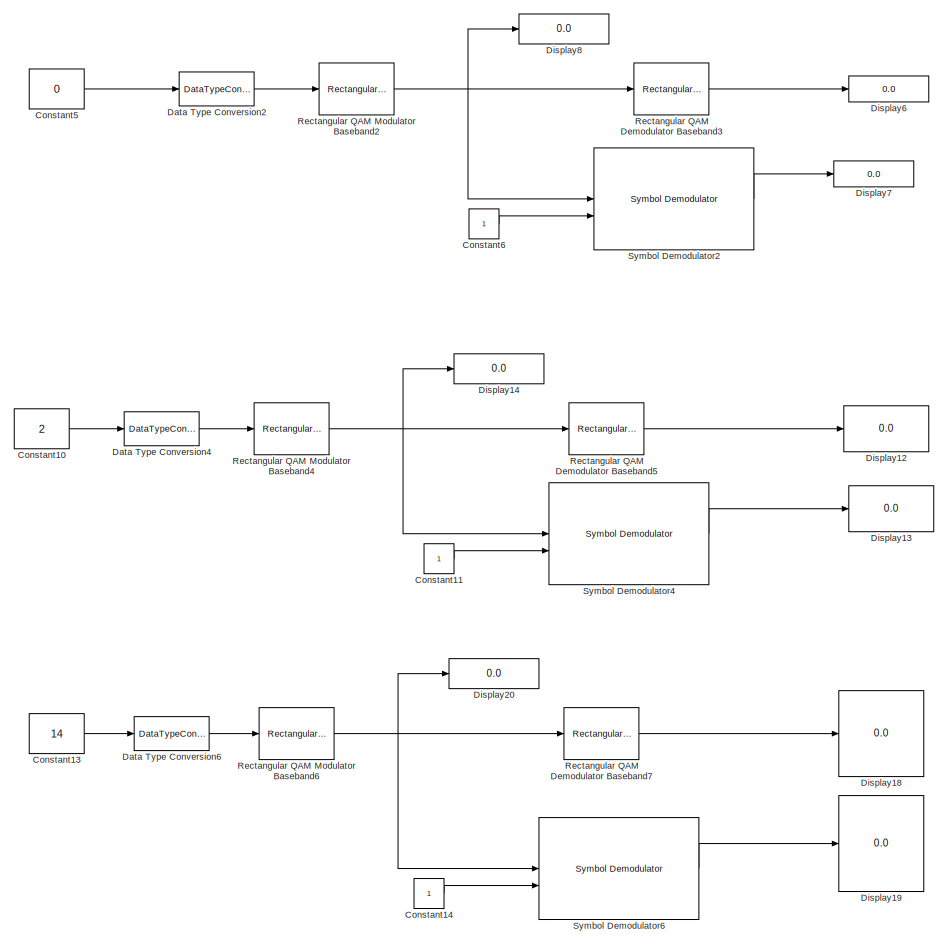
[diagram: root canvas - part 1/2, right side, full height]
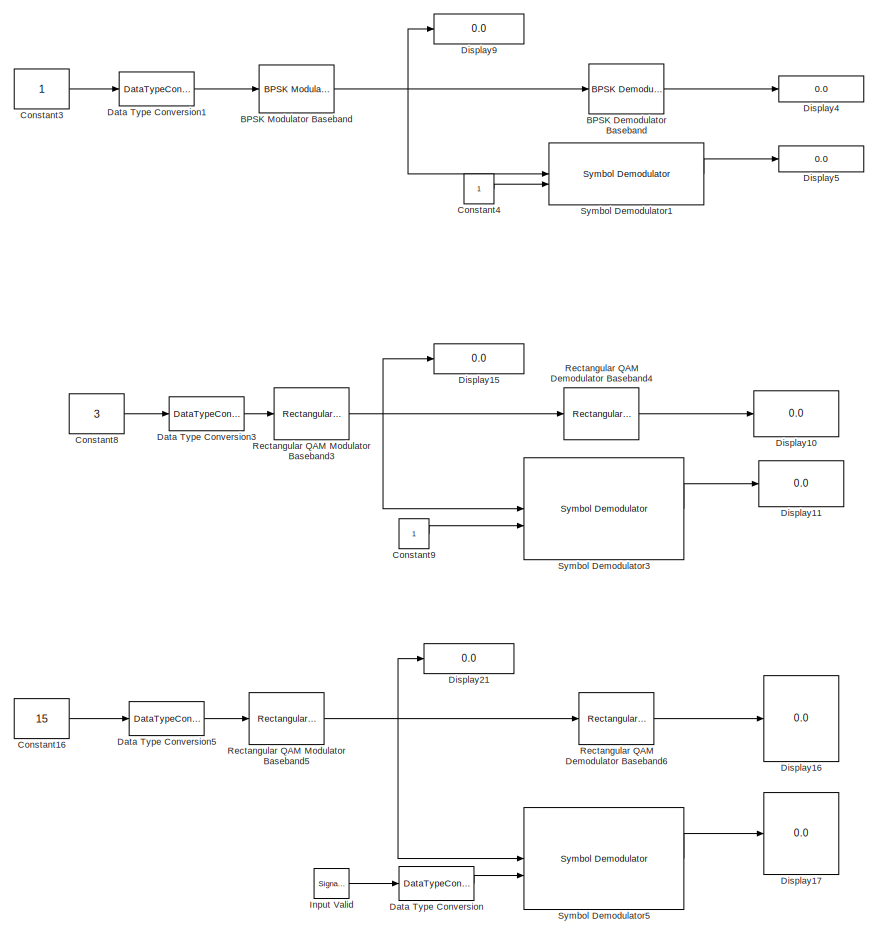
[diagram: root canvas - part 2/2, left side, full height]
MODEL slx_4b32fb0c8fdf
KIND model
CONFIG AbsTol = auto
CONFIG EnableMultiTasking = off
CONFIG FixedStep = auto
CONFIG MaxStep = auto
CONFIG MinStep = auto
CONFIG RelTol = 1e-3
CONFIG SampleTimeConstraint = Unconstrained
CONFIG SolverName = FixedStepDiscrete
CONFIG StartTime = 0.0
CONFIG StopTime = 20
BLOCK [Reference] BPSK Demodulator Baseband  REF=commdigbbndpm3/BPSK
Demodulator
Baseband
  LibrarySourceBlock = commhdldigbbndpm/BPSK\nDemodulator\nBaseband
  SourceBlock = commdigbbndpm3/BPSK\nDemodulator\nBaseband
  SourceType = BPSK Demodulator Baseband
BLOCK [Reference] BPSK Modulator Baseband  REF=commdigbbndpm3/BPSK
Modulator
Baseband
  LibrarySourceBlock = commhdldigbbndpm/BPSK\nModulator\nBaseband
  SourceBlock = commdigbbndpm3/BPSK\nModulator\nBaseband
  SourceType = BPSK Modulator Baseband
BLOCK [Constant] Constant10
  SampleTime = 1
  Value = 2
BLOCK [Constant] Constant11
  OutDataTypeStr = boolean
  SampleTime = -1
BLOCK [Constant] Constant13
  SampleTime = 1
  Value = 14
BLOCK [Constant] Constant14
  OutDataTypeStr = boolean
  SampleTime = -1
BLOCK [Constant] Constant16
  SampleTime = 1
  Value = 15
BLOCK [Constant] Constant3
  SampleTime = 1
BLOCK [Constant] Constant4
  OutDataTypeStr = boolean
  SampleTime = -1
BLOCK [Constant] Constant5
  SampleTime = 1
  Value = 0
BLOCK [Constant] Constant6
  OutDataTypeStr = boolean
  SampleTime = -1
BLOCK [Constant] Constant8
  SampleTime = 1
  Value = 3
BLOCK [Constant] Constant9
  OutDataTypeStr = boolean
  SampleTime = -1
BLOCK [DataTypeConversion] Data Type Conversion
  OutDataTypeStr = boolean
  RndMeth = Floor
  SaturateOnIntegerOverflow = off
BLOCK [DataTypeConversion] Data Type Conversion1
  OutDataTypeStr = uint8
  RndMeth = Floor
  SaturateOnIntegerOverflow = off
BLOCK [DataTypeConversion] Data Type Conversion2
  OutDataTypeStr = uint8
  RndMeth = Floor
  SaturateOnIntegerOverflow = off
BLOCK [DataTypeConversion] Data Type Conversion3
  OutDataTypeStr = uint8
  RndMeth = Floor
  SaturateOnIntegerOverflow = off
BLOCK [DataTypeConversion] Data Type Conversion4
  OutDataTypeStr = uint8
  RndMeth = Floor
  SaturateOnIntegerOverflow = off
BLOCK [DataTypeConversion] Data Type Conversion5
  OutDataTypeStr = uint8
  RndMeth = Floor
  SaturateOnIntegerOverflow = off
BLOCK [DataTypeConversion] Data Type Conversion6
  OutDataTypeStr = uint8
  RndMeth = Floor
  SaturateOnIntegerOverflow = off
BLOCK [Display] Display10
  Decimation = 1
BLOCK [Display] Display11
  Decimation = 1
BLOCK [Display] Display12
  Decimation = 1
BLOCK [Display] Display13
  Decimation = 1
BLOCK [Display] Display14
  Decimation = 1
BLOCK [Display] Display15
  Decimation = 1
BLOCK [Display] Display16
  Decimation = 1
BLOCK [Display] Display17
  Decimation = 1
BLOCK [Display] Display18
  Decimation = 1
BLOCK [Display] Display19
  Decimation = 1
BLOCK [Display] Display20
  Decimation = 1
BLOCK [Display] Display21
  Decimation = 1
BLOCK [Display] Display4
  Decimation = 1
BLOCK [Display] Display5
  Decimation = 1
BLOCK [Display] Display6
  Decimation = 1
BLOCK [Display] Display7
  Decimation = 1
BLOCK [Display] Display8
  Decimation = 1
BLOCK [Display] Display9
  Decimation = 1
BLOCK [Reference] Input Valid  REF=dspsrcs4/Signal From
Workspace
  SourceBlock = dspsrcs4/Signal From\nWorkspace
  SourceType = Signal From Workspace
BLOCK [Reference] Rectangular QAM Demodulator Baseband3  REF=commdigbbndam3/Rectangular QAM
Demodulator
Baseband
  LibrarySourceBlock = commhdldigbbndam/Rectangular QAM\nDemodulator\nBaseband
  SourceBlock = commdigbbndam3/Rectangular QAM\nDemodulator\nBaseband
  SourceType = Rectangular QAM Demodulator Baseband
BLOCK [Reference] Rectangular QAM Demodulator Baseband4  REF=commdigbbndam3/Rectangular QAM
Demodulator
Baseband
  LibrarySourceBlock = commhdldigbbndam/Rectangular QAM\nDemodulator\nBaseband
  SourceBlock = commdigbbndam3/Rectangular QAM\nDemodulator\nBaseband
  SourceType = Rectangular QAM Demodulator Baseband
BLOCK [Reference] Rectangular QAM Demodulator Baseband5  REF=commdigbbndam3/Rectangular QAM
Demodulator
Baseband
  LibrarySourceBlock = commhdldigbbndam/Rectangular QAM\nDemodulator\nBaseband
  SourceBlock = commdigbbndam3/Rectangular QAM\nDemodulator\nBaseband
  SourceType = Rectangular QAM Demodulator Baseband
BLOCK [Reference] Rectangular QAM Demodulator Baseband6  REF=commdigbbndam3/Rectangular QAM
Demodulator
Baseband
  LibrarySourceBlock = commhdldigbbndam/Rectangular QAM\nDemodulator\nBaseband
  SourceBlock = commdigbbndam3/Rectangular QAM\nDemodulator\nBaseband
  SourceType = Rectangular QAM Demodulator Baseband
BLOCK [Reference] Rectangular QAM Demodulator Baseband7  REF=commdigbbndam3/Rectangular QAM
Demodulator
Baseband
  LibrarySourceBlock = commhdldigbbndam/Rectangular QAM\nDemodulator\nBaseband
  SourceBlock = commdigbbndam3/Rectangular QAM\nDemodulator\nBaseband
  SourceType = Rectangular QAM Demodulator Baseband
BLOCK [Reference] Rectangular QAM Modulator Baseband2  REF=commdigbbndam3/Rectangular QAM
Modulator
Baseband
  LibrarySourceBlock = commhdldigbbndam/Rectangular QAM\nModulator\nBaseband
  SourceBlock = commdigbbndam3/Rectangular QAM\nModulator\nBaseband
  SourceType = Rectangular QAM Modulator Baseband
BLOCK [Reference] Rectangular QAM Modulator Baseband3  REF=commdigbbndam3/Rectangular QAM
Modulator
Baseband
  LibrarySourceBlock = commhdldigbbndam/Rectangular QAM\nModulator\nBaseband
  SourceBlock = commdigbbndam3/Rectangular QAM\nModulator\nBaseband
  SourceType = Rectangular QAM Modulator Baseband
BLOCK [Reference] Rectangular QAM Modulator Baseband4  REF=commdigbbndam3/Rectangular QAM
Modulator
Baseband
  LibrarySourceBlock = commhdldigbbndam/Rectangular QAM\nModulator\nBaseband
  SourceBlock = commdigbbndam3/Rectangular QAM\nModulator\nBaseband
  SourceType = Rectangular QAM Modulator Baseband
BLOCK [Reference] Rectangular QAM Modulator Baseband5  REF=commdigbbndam3/Rectangular QAM
Modulator
Baseband
  LibrarySourceBlock = commhdldigbbndam/Rectangular QAM\nModulator\nBaseband
  SourceBlock = commdigbbndam3/Rectangular QAM\nModulator\nBaseband
  SourceType = Rectangular QAM Modulator Baseband
BLOCK [Reference] Rectangular QAM Modulator Baseband6  REF=commdigbbndam3/Rectangular QAM
Modulator
Baseband
  LibrarySourceBlock = commhdldigbbndam/Rectangular QAM\nModulator\nBaseband
  SourceBlock = commdigbbndam3/Rectangular QAM\nModulator\nBaseband
  SourceType = Rectangular QAM Modulator Baseband
BLOCK [Reference] Symbol Demodulator1  REF=whdlmod/Symbol Demodulator
  SourceBlock = whdlmod/Symbol Demodulator
  SourceType = Symbol Demodulator
BLOCK [Reference] Symbol Demodulator2  REF=whdlmod/Symbol Demodulator
  SourceBlock = whdlmod/Symbol Demodulator
  SourceType = Symbol Demodulator
BLOCK [Reference] Symbol Demodulator3  REF=whdlmod/Symbol Demodulator
  SourceBlock = whdlmod/Symbol Demodulator
  SourceType = Symbol Demodulator
BLOCK [Reference] Symbol Demodulator4  REF=whdlmod/Symbol Demodulator
  SourceBlock = whdlmod/Symbol Demodulator
  SourceType = Symbol Demodulator
BLOCK [Reference] Symbol Demodulator5  REF=whdlmod/Symbol Demodulator
  SourceBlock = whdlmod/Symbol Demodulator
  SourceType = Symbol Demodulator
BLOCK [Reference] Symbol Demodulator6  REF=whdlmod/Symbol Demodulator
  SourceBlock = whdlmod/Symbol Demodulator
  SourceType = Symbol Demodulator
LINE BPSK Demodulator Baseband:1 -> Display4:1
NET BPSK Modulator Baseband:1 -> BPSK Demodulator Baseband:1, Display9:1, Symbol Demodulator1:1
LINE Constant10:1 -> Data Type Conversion4:1
LINE Constant11:1 -> Symbol Demodulator4:2
LINE Constant13:1 -> Data Type Conversion6:1
LINE Constant14:1 -> Symbol Demodulator6:2
LINE Constant16:1 -> Data Type Conversion5:1
LINE Constant3:1 -> Data Type Conversion1:1
LINE Constant4:1 -> Symbol Demodulator1:2
LINE Constant5:1 -> Data Type Conversion2:1
LINE Constant6:1 -> Symbol Demodulator2:2
LINE Constant8:1 -> Data Type Conversion3:1
LINE Constant9:1 -> Symbol Demodulator3:2
LINE Data Type Conversion1:1 -> BPSK Modulator Baseband:1
LINE Data Type Conversion2:1 -> Rectangular QAM Modulator Baseband2:1
LINE Data Type Conversion3:1 -> Rectangular QAM Modulator Baseband3:1
LINE Data Type Conversion4:1 -> Rectangular QAM Modulator Baseband4:1
LINE Data Type Conversion5:1 -> Rectangular QAM Modulator Baseband5:1
LINE Data Type Conversion6:1 -> Rectangular QAM Modulator Baseband6:1
LINE Data Type Conversion:1 -> Symbol Demodulator5:2
LINE Input Valid:1 -> Data Type Conversion:1
LINE Rectangular QAM Demodulator Baseband3:1 -> Display6:1
LINE Rectangular QAM Demodulator Baseband4:1 -> Display10:1
LINE Rectangular QAM Demodulator Baseband5:1 -> Display12:1
LINE Rectangular QAM Demodulator Baseband6:1 -> Display16:1
LINE Rectangular QAM Demodulator Baseband7:1 -> Display18:1
NET Rectangular QAM Modulator Baseband2:1 -> Display8:1, Rectangular QAM Demodulator Baseband3:1, Symbol Demodulator2:1
NET Rectangular QAM Modulator Baseband3:1 -> Display15:1, Rectangular QAM Demodulator Baseband4:1, Symbol Demodulator3:1
NET Rectangular QAM Modulator Baseband4:1 -> Display14:1, Rectangular QAM Demodulator Baseband5:1, Symbol Demodulator4:1
NET Rectangular QAM Modulator Baseband5:1 -> Display21:1, Rectangular QAM Demodulator Baseband6:1, Symbol Demodulator5:1
NET Rectangular QAM Modulator Baseband6:1 -> Display20:1, Rectangular QAM Demodulator Baseband7:1, Symbol Demodulator6:1
LINE Symbol Demodulator1:1 -> Display5:1
LINE Symbol Demodulator2:1 -> Display7:1
LINE Symbol Demodulator3:1 -> Display11:1
LINE Symbol Demodulator4:1 -> Display13:1
LINE Symbol Demodulator5:1 -> Display17:1
LINE Symbol Demodulator6:1 -> Display19:1
note: NET lines group one-source signal fan-out (src -> all destinations, sorted); 1:1 wires keep LINE
